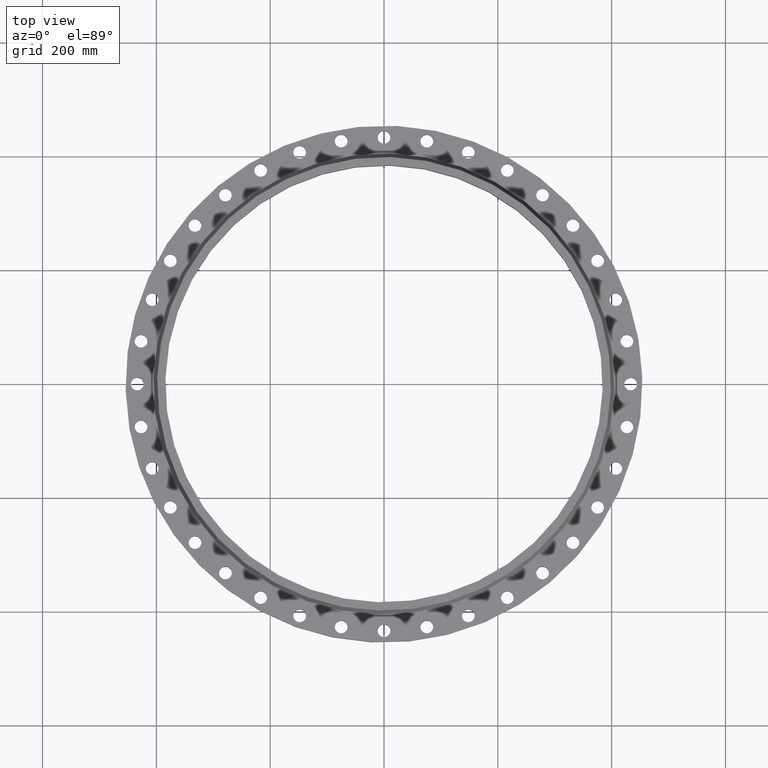
[diagram: clean part render]
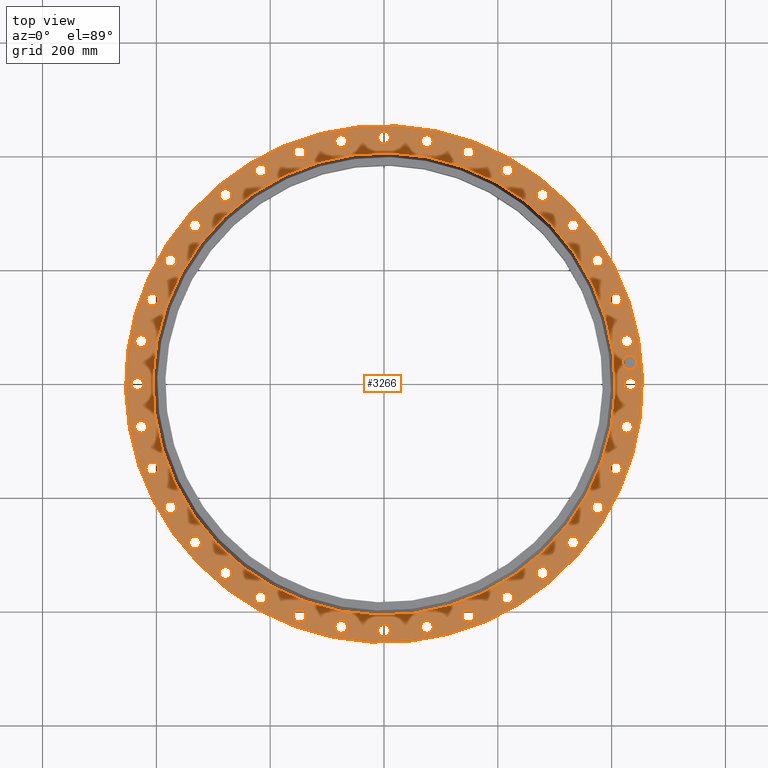
[diagram: same view with one face highlighted and labeled with its STEP entity id]
A machine part, top view. The second image highlights one B-rep face of the part: STEP entity #3266.
In plain terms, the highlighted planar face has unit normal (0, 0, -1).
Its self-contained STEP definition (entity closure, byte-faithful):
#65=AXIS2_PLACEMENT_3D('Circle Axis2P3D',#63,#64,$) ;
#89=AXIS2_PLACEMENT_3D('Circle Axis2P3D',#87,#88,$) ;
#123=AXIS2_PLACEMENT_3D('Circle Axis2P3D',#121,#122,$) ;
#147=AXIS2_PLACEMENT_3D('Circle Axis2P3D',#145,#146,$) ;
#164=AXIS2_PLACEMENT_3D('Circle Axis2P3D',#162,#163,$) ;
#199=AXIS2_PLACEMENT_3D('Circle Axis2P3D',#197,#198,$) ;
#1572=AXIS2_PLACEMENT_3D('Circle Axis2P3D',#1570,#1571,$) ;
#1584=AXIS2_PLACEMENT_3D('Circle Axis2P3D',#1582,#1583,$) ;
#1616=AXIS2_PLACEMENT_3D('Circle Axis2P3D',#1614,#1615,$) ;
#1628=AXIS2_PLACEMENT_3D('Circle Axis2P3D',#1626,#1627,$) ;
#1660=AXIS2_PLACEMENT_3D('Circle Axis2P3D',#1658,#1659,$) ;
#1672=AXIS2_PLACEMENT_3D('Circle Axis2P3D',#1670,#1671,$) ;
#1704=AXIS2_PLACEMENT_3D('Circle Axis2P3D',#1702,#1703,$) ;
#1716=AXIS2_PLACEMENT_3D('Circle Axis2P3D',#1714,#1715,$) ;
#1748=AXIS2_PLACEMENT_3D('Circle Axis2P3D',#1746,#1747,$) ;
#1760=AXIS2_PLACEMENT_3D('Circle Axis2P3D',#1758,#1759,$) ;
#1792=AXIS2_PLACEMENT_3D('Circle Axis2P3D',#1790,#1791,$) ;
#1804=AXIS2_PLACEMENT_3D('Circle Axis2P3D',#1802,#1803,$) ;
#1836=AXIS2_PLACEMENT_3D('Circle Axis2P3D',#1834,#1835,$) ;
#1848=AXIS2_PLACEMENT_3D('Circle Axis2P3D',#1846,#1847,$) ;
#1880=AXIS2_PLACEMENT_3D('Circle Axis2P3D',#1878,#1879,$) ;
#1892=AXIS2_PLACEMENT_3D('Circle Axis2P3D',#1890,#1891,$) ;
#1924=AXIS2_PLACEMENT_3D('Circle Axis2P3D',#1922,#1923,$) ;
#1936=AXIS2_PLACEMENT_3D('Circle Axis2P3D',#1934,#1935,$) ;
#1968=AXIS2_PLACEMENT_3D('Circle Axis2P3D',#1966,#1967,$) ;
#1980=AXIS2_PLACEMENT_3D('Circle Axis2P3D',#1978,#1979,$) ;
#2012=AXIS2_PLACEMENT_3D('Circle Axis2P3D',#2010,#2011,$) ;
#2024=AXIS2_PLACEMENT_3D('Circle Axis2P3D',#2022,#2023,$) ;
#2056=AXIS2_PLACEMENT_3D('Circle Axis2P3D',#2054,#2055,$) ;
#2068=AXIS2_PLACEMENT_3D('Circle Axis2P3D',#2066,#2067,$) ;
#2100=AXIS2_PLACEMENT_3D('Circle Axis2P3D',#2098,#2099,$) ;
#2112=AXIS2_PLACEMENT_3D('Circle Axis2P3D',#2110,#2111,$) ;
#2144=AXIS2_PLACEMENT_3D('Circle Axis2P3D',#2142,#2143,$) ;
#2156=AXIS2_PLACEMENT_3D('Circle Axis2P3D',#2154,#2155,$) ;
#2188=AXIS2_PLACEMENT_3D('Circle Axis2P3D',#2186,#2187,$) ;
#2200=AXIS2_PLACEMENT_3D('Circle Axis2P3D',#2198,#2199,$) ;
#2232=AXIS2_PLACEMENT_3D('Circle Axis2P3D',#2230,#2231,$) ;
#2244=AXIS2_PLACEMENT_3D('Circle Axis2P3D',#2242,#2243,$) ;
#2276=AXIS2_PLACEMENT_3D('Circle Axis2P3D',#2274,#2275,$) ;
#2288=AXIS2_PLACEMENT_3D('Circle Axis2P3D',#2286,#2287,$) ;
#2320=AXIS2_PLACEMENT_3D('Circle Axis2P3D',#2318,#2319,$) ;
#2332=AXIS2_PLACEMENT_3D('Circle Axis2P3D',#2330,#2331,$) ;
#2364=AXIS2_PLACEMENT_3D('Circle Axis2P3D',#2362,#2363,$) ;
#2376=AXIS2_PLACEMENT_3D('Circle Axis2P3D',#2374,#2375,$) ;
#2408=AXIS2_PLACEMENT_3D('Circle Axis2P3D',#2406,#2407,$) ;
#2420=AXIS2_PLACEMENT_3D('Circle Axis2P3D',#2418,#2419,$) ;
#2452=AXIS2_PLACEMENT_3D('Circle Axis2P3D',#2450,#2451,$) ;
#2464=AXIS2_PLACEMENT_3D('Circle Axis2P3D',#2462,#2463,$) ;
#2496=AXIS2_PLACEMENT_3D('Circle Axis2P3D',#2494,#2495,$) ;
#2508=AXIS2_PLACEMENT_3D('Circle Axis2P3D',#2506,#2507,$) ;
#2540=AXIS2_PLACEMENT_3D('Circle Axis2P3D',#2538,#2539,$) ;
#2552=AXIS2_PLACEMENT_3D('Circle Axis2P3D',#2550,#2551,$) ;
#2584=AXIS2_PLACEMENT_3D('Circle Axis2P3D',#2582,#2583,$) ;
#2596=AXIS2_PLACEMENT_3D('Circle Axis2P3D',#2594,#2595,$) ;
#2628=AXIS2_PLACEMENT_3D('Circle Axis2P3D',#2626,#2627,$) ;
#2640=AXIS2_PLACEMENT_3D('Circle Axis2P3D',#2638,#2639,$) ;
#2672=AXIS2_PLACEMENT_3D('Circle Axis2P3D',#2670,#2671,$) ;
#2684=AXIS2_PLACEMENT_3D('Circle Axis2P3D',#2682,#2683,$) ;
#2716=AXIS2_PLACEMENT_3D('Circle Axis2P3D',#2714,#2715,$) ;
#2728=AXIS2_PLACEMENT_3D('Circle Axis2P3D',#2726,#2727,$) ;
#2760=AXIS2_PLACEMENT_3D('Circle Axis2P3D',#2758,#2759,$) ;
#2772=AXIS2_PLACEMENT_3D('Circle Axis2P3D',#2770,#2771,$) ;
#2804=AXIS2_PLACEMENT_3D('Circle Axis2P3D',#2802,#2803,$) ;
#2816=AXIS2_PLACEMENT_3D('Circle Axis2P3D',#2814,#2815,$) ;
#2848=AXIS2_PLACEMENT_3D('Circle Axis2P3D',#2846,#2847,$) ;
#2860=AXIS2_PLACEMENT_3D('Circle Axis2P3D',#2858,#2859,$) ;
#2892=AXIS2_PLACEMENT_3D('Circle Axis2P3D',#2890,#2891,$) ;
#2904=AXIS2_PLACEMENT_3D('Circle Axis2P3D',#2902,#2903,$) ;
#2936=AXIS2_PLACEMENT_3D('Circle Axis2P3D',#2934,#2935,$) ;
#2948=AXIS2_PLACEMENT_3D('Circle Axis2P3D',#2946,#2947,$) ;
#2980=AXIS2_PLACEMENT_3D('Circle Axis2P3D',#2978,#2979,$) ;
#2992=AXIS2_PLACEMENT_3D('Circle Axis2P3D',#2990,#2991,$) ;
#3024=AXIS2_PLACEMENT_3D('Circle Axis2P3D',#3022,#3023,$) ;
#3036=AXIS2_PLACEMENT_3D('Circle Axis2P3D',#3034,#3035,$) ;
#3068=AXIS2_PLACEMENT_3D('Circle Axis2P3D',#3066,#3067,$) ;
#3080=AXIS2_PLACEMENT_3D('Circle Axis2P3D',#3078,#3079,$) ;
#3094=AXIS2_PLACEMENT_3D('Plane Axis2P3D',#3091,#3092,#3093) ;
#3250=AXIS2_PLACEMENT_3D('Circle Axis2P3D',#3248,#3249,$) ;
#3259=AXIS2_PLACEMENT_3D('Circle Axis2P3D',#3257,#3258,$) ;
#46=CARTESIAN_POINT('Vertex',(16.6788636728,0.210947236987,1.38000000001)) ;
#60=CARTESIAN_POINT('Vertex',(17.4511363273,-0.210947236987,1.38000000001)) ;
#63=CARTESIAN_POINT('Axis2P3D Location',(17.0650000001,0.,1.38000000001)) ;
#87=CARTESIAN_POINT('Axis2P3D Location',(17.0650000001,0.,1.38000000001)) ;
#118=CARTESIAN_POINT('Vertex',(-8.56973150258,-15.6867882939,1.38000000001)) ;
#121=CARTESIAN_POINT('Axis2P3D Location',(0.,0.,1.38000000001)) ;
#125=CARTESIAN_POINT('Vertex',(8.56973150258,15.6867882939,1.38000000001)) ;
#145=CARTESIAN_POINT('Axis2P3D Location',(0.,0.,1.38000000001)) ;
#162=CARTESIAN_POINT('Axis2P3D Location',(0.,0.,1.38000000001)) ;
#166=CARTESIAN_POINT('Vertex',(7.66618023294,14.0328487888,1.38000000001)) ;
#168=CARTESIAN_POINT('Vertex',(-7.66618023294,-14.0328487888,1.38000000001)) ;
#197=CARTESIAN_POINT('Axis2P3D Location',(0.,0.,1.38000000001)) ;
#1560=CARTESIAN_POINT('Vertex',(-16.6788636728,-0.210947236987,1.38000000001)) ;
#1567=CARTESIAN_POINT('Vertex',(-17.4511363273,0.210947236987,1.38000000001)) ;
#1570=CARTESIAN_POINT('Axis2P3D Location',(-17.0650000001,-2.08985976275E-015,1.38000000001)) ;
#1582=CARTESIAN_POINT('Axis2P3D Location',(-17.0650000001,-2.08985976275E-015,1.38000000001)) ;
#1604=CARTESIAN_POINT('Vertex',(16.3888436532,3.1039967568,1.38000000001)) ;
#1611=CARTESIAN_POINT('Vertex',(17.2226449573,2.82261554699,1.38000000001)) ;
#1614=CARTESIAN_POINT('Axis2P3D Location',(16.8057443052,2.9633061519,1.38000000001)) ;
#1626=CARTESIAN_POINT('Axis2P3D Location',(16.8057443052,2.9633061519,1.38000000001)) ;
#1648=CARTESIAN_POINT('Vertex',(-16.3888436532,-3.1039967568,1.38000000001)) ;
#1655=CARTESIAN_POINT('Vertex',(-17.2226449573,-2.82261554699,1.38000000001)) ;
#1658=CARTESIAN_POINT('Axis2P3D Location',(-16.8057443052,-2.9633061519,1.38000000001)) ;
#1670=CARTESIAN_POINT('Axis2P3D Location',(-16.8057443052,-2.9633061519,1.38000000001)) ;
#1692=CARTESIAN_POINT('Vertex',(16.4621048597,-2.68851180788,1.38000000001)) ;
#1699=CARTESIAN_POINT('Vertex',(17.1493837507,-3.23810049591,1.38000000001)) ;
#1702=CARTESIAN_POINT('Axis2P3D Location',(16.8057443052,-2.9633061519,1.38000000001)) ;
#1714=CARTESIAN_POINT('Axis2P3D Location',(16.8057443052,-2.9633061519,1.38000000001)) ;
#1736=CARTESIAN_POINT('Vertex',(-8.52211750251,14.3388460284,1.38000000001)) ;
#1743=CARTESIAN_POINT('Vertex',(-8.54288249756,15.2186010028,1.38000000001)) ;
#1746=CARTESIAN_POINT('Axis2P3D Location',(-8.53250000003,14.7787235156,1.38000000001)) ;
#1758=CARTESIAN_POINT('Axis2P3D Location',(-8.53250000003,14.7787235156,1.38000000001)) ;
#1780=CARTESIAN_POINT('Vertex',(12.6411565639,10.8825618712,1.38000000001)) ;
#1787=CARTESIAN_POINT('Vertex',(13.5039402799,11.0557792475,1.38000000001)) ;
#1790=CARTESIAN_POINT('Axis2P3D Location',(13.0725484219,10.9691705593,1.38000000001)) ;
#1802=CARTESIAN_POINT('Axis2P3D Location',(13.0725484219,10.9691705593,1.38000000001)) ;
#1824=CARTESIAN_POINT('Vertex',(-15.7451533207,5.50628178192,1.38000000001)) ;
#1831=CARTESIAN_POINT('Vertex',(-16.3265558269,6.16686570983,1.38000000001)) ;
#1834=CARTESIAN_POINT('Axis2P3D Location',(-16.0358545738,5.83657374588,1.38000000001)) ;
#1846=CARTESIAN_POINT('Axis2P3D Location',(-16.0358545738,5.83657374588,1.38000000001)) ;
#1868=CARTESIAN_POINT('Vertex',(14.5497932654,-8.15674617033,1.38000000001)) ;
#1875=CARTESIAN_POINT('Vertex',(15.0076537659,-8.90825382974,1.38000000001)) ;
#1878=CARTESIAN_POINT('Axis2P3D Location',(14.7787235156,-8.53250000003,1.38000000001)) ;
#1890=CARTESIAN_POINT('Axis2P3D Location',(14.7787235156,-8.53250000003,1.38000000001)) ;
#1912=CARTESIAN_POINT('Vertex',(2.68851180788,16.4621048597,1.38000000001)) ;
#1919=CARTESIAN_POINT('Vertex',(3.23810049591,17.1493837507,1.38000000001)) ;
#1922=CARTESIAN_POINT('Axis2P3D Location',(2.9633061519,16.8057443052,1.38000000001)) ;
#1934=CARTESIAN_POINT('Axis2P3D Location',(2.9633061519,16.8057443052,1.38000000001)) ;
#1956=CARTESIAN_POINT('Vertex',(12.9123451043,-10.5593719539,1.38000000001)) ;
#1963=CARTESIAN_POINT('Vertex',(13.2327517394,-11.3789691648,1.38000000001)) ;
#1966=CARTESIAN_POINT('Axis2P3D Location',(13.0725484219,-10.9691705593,1.38000000001)) ;
#1978=CARTESIAN_POINT('Axis2P3D Location',(13.0725484219,-10.9691705593,1.38000000001)) ;
#2000=CARTESIAN_POINT('Vertex',(14.3388460284,8.52211750251,1.38000000001)) ;
#2007=CARTESIAN_POINT('Vertex',(15.2186010028,8.54288249756,1.38000000001)) ;
#2010=CARTESIAN_POINT('Axis2P3D Location',(14.7787235156,8.53250000003,1.38000000001)) ;
#2022=CARTESIAN_POINT('Axis2P3D Location',(14.7787235156,8.53250000003,1.38000000001)) ;
#2044=CARTESIAN_POINT('Vertex',(10.8825618712,-12.6411565639,1.38000000001)) ;
#2051=CARTESIAN_POINT('Vertex',(11.0557792475,-13.5039402799,1.38000000001)) ;
#2054=CARTESIAN_POINT('Axis2P3D Location',(10.9691705593,-13.0725484219,1.38000000001)) ;
#2066=CARTESIAN_POINT('Axis2P3D Location',(10.9691705593,-13.0725484219,1.38000000001)) ;
#2088=CARTESIAN_POINT('Vertex',(-12.9123451043,10.5593719539,1.38000000001)) ;
#2095=CARTESIAN_POINT('Vertex',(-13.2327517394,11.3789691648,1.38000000001)) ;
#2098=CARTESIAN_POINT('Axis2P3D Location',(-13.0725484219,10.9691705593,1.38000000001)) ;
#2110=CARTESIAN_POINT('Axis2P3D Location',(-13.0725484219,10.9691705593,1.38000000001)) ;
#2132=CARTESIAN_POINT('Vertex',(8.52211750251,-14.3388460284,1.38000000001)) ;
#2139=CARTESIAN_POINT('Vertex',(8.54288249756,-15.2186010028,1.38000000001)) ;
#2142=CARTESIAN_POINT('Axis2P3D Location',(8.53250000003,-14.7787235156,1.38000000001)) ;
#2154=CARTESIAN_POINT('Axis2P3D Location',(8.53250000003,-14.7787235156,1.38000000001)) ;
#2176=CARTESIAN_POINT('Vertex',(-3.1039967568,16.3888436532,1.38000000001)) ;
#2183=CARTESIAN_POINT('Vertex',(-2.82261554699,17.2226449573,1.38000000001)) ;
#2186=CARTESIAN_POINT('Axis2P3D Location',(-2.9633061519,16.8057443052,1.38000000001)) ;
#2198=CARTESIAN_POINT('Axis2P3D Location',(-2.9633061519,16.8057443052,1.38000000001)) ;
#2220=CARTESIAN_POINT('Vertex',(5.90273290586,-15.6008569122,1.38000000001)) ;
#2227=CARTESIAN_POINT('Vertex',(5.77041458589,-16.4708522353,1.38000000001)) ;
#2230=CARTESIAN_POINT('Axis2P3D Location',(5.83657374588,-16.0358545738,1.38000000001)) ;
#2242=CARTESIAN_POINT('Axis2P3D Location',(5.83657374588,-16.0358545738,1.38000000001)) ;
#2264=CARTESIAN_POINT('Vertex',(8.15674617033,14.5497932654,1.38000000001)) ;
#2271=CARTESIAN_POINT('Vertex',(8.90825382974,15.0076537659,1.38000000001)) ;
#2274=CARTESIAN_POINT('Axis2P3D Location',(8.53250000003,14.7787235156,1.38000000001)) ;
#2286=CARTESIAN_POINT('Axis2P3D Location',(8.53250000003,14.7787235156,1.38000000001)) ;
#2308=CARTESIAN_POINT('Vertex',(3.1039967568,-16.3888436532,1.38000000001)) ;
#2315=CARTESIAN_POINT('Vertex',(2.82261554699,-17.2226449573,1.38000000001)) ;
#2318=CARTESIAN_POINT('Axis2P3D Location',(2.9633061519,-16.8057443052,1.38000000001)) ;
#2330=CARTESIAN_POINT('Axis2P3D Location',(2.9633061519,-16.8057443052,1.38000000001)) ;
#2352=CARTESIAN_POINT('Vertex',(15.6008569122,5.90273290586,1.38000000001)) ;
#2359=CARTESIAN_POINT('Vertex',(16.4708522353,5.77041458589,1.38000000001)) ;
#2362=CARTESIAN_POINT('Axis2P3D Location',(16.0358545738,5.83657374588,1.38000000001)) ;
#2374=CARTESIAN_POINT('Axis2P3D Location',(16.0358545738,5.83657374588,1.38000000001)) ;
#2396=CARTESIAN_POINT('Vertex',(0.210947236987,-16.6788636728,1.38000000001)) ;
#2403=CARTESIAN_POINT('Vertex',(-0.210947236987,-17.4511363273,1.38000000001)) ;
#2406=CARTESIAN_POINT('Axis2P3D Location',(1.04492988138E-015,-17.0650000001,1.38000000001)) ;
#2418=CARTESIAN_POINT('Axis2P3D Location',(1.04492988138E-015,-17.0650000001,1.38000000001)) ;
#2440=CARTESIAN_POINT('Vertex',(-16.4621048597,2.68851180788,1.38000000001)) ;
#2447=CARTESIAN_POINT('Vertex',(-17.1493837507,3.23810049591,1.38000000001)) ;
#2450=CARTESIAN_POINT('Axis2P3D Location',(-16.8057443052,2.9633061519,1.38000000001)) ;
#2462=CARTESIAN_POINT('Axis2P3D Location',(-16.8057443052,2.9633061519,1.38000000001)) ;
#2484=CARTESIAN_POINT('Vertex',(-2.68851180788,-16.4621048597,1.38000000001)) ;
#2491=CARTESIAN_POINT('Vertex',(-3.23810049591,-17.1493837507,1.38000000001)) ;
#2494=CARTESIAN_POINT('Axis2P3D Location',(-2.9633061519,-16.8057443052,1.38000000001)) ;
#2506=CARTESIAN_POINT('Axis2P3D Location',(-2.9633061519,-16.8057443052,1.38000000001)) ;
#2528=CARTESIAN_POINT('Vertex',(-14.5497932654,8.15674617033,1.38000000001)) ;
#2535=CARTESIAN_POINT('Vertex',(-15.0076537659,8.90825382974,1.38000000001)) ;
#2538=CARTESIAN_POINT('Axis2P3D Location',(-14.7787235156,8.53250000003,1.38000000001)) ;
#2550=CARTESIAN_POINT('Axis2P3D Location',(-14.7787235156,8.53250000003,1.38000000001)) ;
#2572=CARTESIAN_POINT('Vertex',(-5.50628178192,-15.7451533207,1.38000000001)) ;
#2579=CARTESIAN_POINT('Vertex',(-6.16686570983,-16.3265558269,1.38000000001)) ;
#2582=CARTESIAN_POINT('Axis2P3D Location',(-5.83657374588,-16.0358545738,1.38000000001)) ;
#2594=CARTESIAN_POINT('Axis2P3D Location',(-5.83657374588,-16.0358545738,1.38000000001)) ;
#2616=CARTESIAN_POINT('Vertex',(-10.8825618712,12.6411565639,1.38000000001)) ;
#2623=CARTESIAN_POINT('Vertex',(-11.0557792475,13.5039402799,1.38000000001)) ;
#2626=CARTESIAN_POINT('Axis2P3D Location',(-10.9691705593,13.0725484219,1.38000000001)) ;
#2638=CARTESIAN_POINT('Axis2P3D Location',(-10.9691705593,13.0725484219,1.38000000001)) ;
#2660=CARTESIAN_POINT('Vertex',(-8.15674617033,-14.5497932654,1.38000000001)) ;
#2667=CARTESIAN_POINT('Vertex',(-8.90825382974,-15.0076537659,1.38000000001)) ;
#2670=CARTESIAN_POINT('Axis2P3D Location',(-8.53250000003,-14.7787235156,1.38000000001)) ;
#2682=CARTESIAN_POINT('Axis2P3D Location',(-8.53250000003,-14.7787235156,1.38000000001)) ;
#2704=CARTESIAN_POINT('Vertex',(-5.90273290586,15.6008569122,1.38000000001)) ;
#2711=CARTESIAN_POINT('Vertex',(-5.77041458589,16.4708522353,1.38000000001)) ;
#2714=CARTESIAN_POINT('Axis2P3D Location',(-5.83657374588,16.0358545738,1.38000000001)) ;
#2726=CARTESIAN_POINT('Axis2P3D Location',(-5.83657374588,16.0358545738,1.38000000001)) ;
#2748=CARTESIAN_POINT('Vertex',(-10.5593719539,-12.9123451043,1.38000000001)) ;
#2755=CARTESIAN_POINT('Vertex',(-11.3789691648,-13.2327517394,1.38000000001)) ;
#2758=CARTESIAN_POINT('Axis2P3D Location',(-10.9691705593,-13.0725484219,1.38000000001)) ;
#2770=CARTESIAN_POINT('Axis2P3D Location',(-10.9691705593,-13.0725484219,1.38000000001)) ;
#2792=CARTESIAN_POINT('Vertex',(-0.210947236987,16.6788636728,1.38000000001)) ;
#2799=CARTESIAN_POINT('Vertex',(0.210947236987,17.4511363273,1.38000000001)) ;
#2802=CARTESIAN_POINT('Axis2P3D Location',(-3.13478964413E-015,17.0650000001,1.38000000001)) ;
#2814=CARTESIAN_POINT('Axis2P3D Location',(-3.13478964413E-015,17.0650000001,1.38000000001)) ;
#2836=CARTESIAN_POINT('Vertex',(-12.6411565639,-10.8825618712,1.38000000001)) ;
#2843=CARTESIAN_POINT('Vertex',(-13.5039402799,-11.0557792475,1.38000000001)) ;
#2846=CARTESIAN_POINT('Axis2P3D Location',(-13.0725484219,-10.9691705593,1.38000000001)) ;
#2858=CARTESIAN_POINT('Axis2P3D Location',(-13.0725484219,-10.9691705593,1.38000000001)) ;
#2880=CARTESIAN_POINT('Vertex',(5.50628178192,15.7451533207,1.38000000001)) ;
#2887=CARTESIAN_POINT('Vertex',(6.16686570983,16.3265558269,1.38000000001)) ;
#2890=CARTESIAN_POINT('Axis2P3D Location',(5.83657374588,16.0358545738,1.38000000001)) ;
#2902=CARTESIAN_POINT('Axis2P3D Location',(5.83657374588,16.0358545738,1.38000000001)) ;
#2924=CARTESIAN_POINT('Vertex',(-14.3388460284,-8.52211750251,1.38000000001)) ;
#2931=CARTESIAN_POINT('Vertex',(-15.2186010028,-8.54288249756,1.38000000001)) ;
#2934=CARTESIAN_POINT('Axis2P3D Location',(-14.7787235156,-8.53250000003,1.38000000001)) ;
#2946=CARTESIAN_POINT('Axis2P3D Location',(-14.7787235156,-8.53250000003,1.38000000001)) ;
#2968=CARTESIAN_POINT('Vertex',(10.5593719539,12.9123451043,1.38000000001)) ;
#2975=CARTESIAN_POINT('Vertex',(11.3789691648,13.2327517394,1.38000000001)) ;
#2978=CARTESIAN_POINT('Axis2P3D Location',(10.9691705593,13.0725484219,1.38000000001)) ;
#2990=CARTESIAN_POINT('Axis2P3D Location',(10.9691705593,13.0725484219,1.38000000001)) ;
#3012=CARTESIAN_POINT('Vertex',(-15.6008569122,-5.90273290586,1.38000000001)) ;
#3019=CARTESIAN_POINT('Vertex',(-16.4708522353,-5.77041458589,1.38000000001)) ;
#3022=CARTESIAN_POINT('Axis2P3D Location',(-16.0358545738,-5.83657374588,1.38000000001)) ;
#3034=CARTESIAN_POINT('Axis2P3D Location',(-16.0358545738,-5.83657374588,1.38000000001)) ;
#3056=CARTESIAN_POINT('Vertex',(15.7451533207,-5.50628178192,1.38000000001)) ;
#3063=CARTESIAN_POINT('Vertex',(16.3265558269,-6.16686570983,1.38000000001)) ;
#3066=CARTESIAN_POINT('Axis2P3D Location',(16.0358545738,-5.83657374588,1.38000000001)) ;
#3078=CARTESIAN_POINT('Axis2P3D Location',(16.0358545738,-5.83657374588,1.38000000001)) ;
#3091=CARTESIAN_POINT('Axis2P3D Location',(0.,17.8750000001,1.38000000001)) ;
#3248=CARTESIAN_POINT('Axis2P3D Location',(17.000062523,1.48731274999,1.38000000001)) ;
#3252=CARTESIAN_POINT('Vertex',(16.9564846521,1.98541009406,1.38000000001)) ;
#3254=CARTESIAN_POINT('Vertex',(17.0436403939,0.989215405928,1.38000000001)) ;
#3257=CARTESIAN_POINT('Axis2P3D Location',(17.000062523,1.48731274999,1.38000000001)) ;
#64=DIRECTION('Axis2P3D Direction',(0.,-0.,-0.0393700787402)) ;
#88=DIRECTION('Axis2P3D Direction',(0.,-0.,-0.0393700787402)) ;
#122=DIRECTION('Axis2P3D Direction',(0.,0.,-0.0393700787402)) ;
#146=DIRECTION('Axis2P3D Direction',(0.,0.,-0.0393700787402)) ;
#163=DIRECTION('Axis2P3D Direction',(0.,0.,-0.0393700787402)) ;
#198=DIRECTION('Axis2P3D Direction',(0.,0.,-0.0393700787402)) ;
#1571=DIRECTION('Axis2P3D Direction',(-0.,0.,-0.0393700787402)) ;
#1583=DIRECTION('Axis2P3D Direction',(-0.,0.,-0.0393700787402)) ;
#1615=DIRECTION('Axis2P3D Direction',(0.,0.,-0.0393700787402)) ;
#1627=DIRECTION('Axis2P3D Direction',(0.,0.,-0.0393700787402)) ;
#1659=DIRECTION('Axis2P3D Direction',(-0.,0.,-0.0393700787402)) ;
#1671=DIRECTION('Axis2P3D Direction',(-0.,0.,-0.0393700787402)) ;
#1703=DIRECTION('Axis2P3D Direction',(0.,-0.,-0.0393700787402)) ;
#1715=DIRECTION('Axis2P3D Direction',(0.,-0.,-0.0393700787402)) ;
#1747=DIRECTION('Axis2P3D Direction',(0.,0.,-0.0393700787402)) ;
#1759=DIRECTION('Axis2P3D Direction',(0.,0.,-0.0393700787402)) ;
#1791=DIRECTION('Axis2P3D Direction',(0.,0.,-0.0393700787402)) ;
#1803=DIRECTION('Axis2P3D Direction',(0.,0.,-0.0393700787402)) ;
#1835=DIRECTION('Axis2P3D Direction',(0.,0.,-0.0393700787402)) ;
#1847=DIRECTION('Axis2P3D Direction',(0.,0.,-0.0393700787402)) ;
#1879=DIRECTION('Axis2P3D Direction',(0.,-0.,-0.0393700787402)) ;
#1891=DIRECTION('Axis2P3D Direction',(0.,-0.,-0.0393700787402)) ;
#1923=DIRECTION('Axis2P3D Direction',(0.,0.,-0.0393700787402)) ;
#1935=DIRECTION('Axis2P3D Direction',(0.,0.,-0.0393700787402)) ;
#1967=DIRECTION('Axis2P3D Direction',(0.,-0.,-0.0393700787402)) ;
#1979=DIRECTION('Axis2P3D Direction',(0.,-0.,-0.0393700787402)) ;
#2011=DIRECTION('Axis2P3D Direction',(0.,0.,-0.0393700787402)) ;
#2023=DIRECTION('Axis2P3D Direction',(0.,0.,-0.0393700787402)) ;
#2055=DIRECTION('Axis2P3D Direction',(0.,-0.,-0.0393700787402)) ;
#2067=DIRECTION('Axis2P3D Direction',(0.,-0.,-0.0393700787402)) ;
#2099=DIRECTION('Axis2P3D Direction',(0.,0.,-0.0393700787402)) ;
#2111=DIRECTION('Axis2P3D Direction',(0.,0.,-0.0393700787402)) ;
#2143=DIRECTION('Axis2P3D Direction',(0.,-0.,-0.0393700787402)) ;
#2155=DIRECTION('Axis2P3D Direction',(0.,-0.,-0.0393700787402)) ;
#2187=DIRECTION('Axis2P3D Direction',(0.,0.,-0.0393700787402)) ;
#2199=DIRECTION('Axis2P3D Direction',(0.,0.,-0.0393700787402)) ;
#2231=DIRECTION('Axis2P3D Direction',(0.,-0.,-0.0393700787402)) ;
#2243=DIRECTION('Axis2P3D Direction',(0.,-0.,-0.0393700787402)) ;
#2275=DIRECTION('Axis2P3D Direction',(0.,0.,-0.0393700787402)) ;
#2287=DIRECTION('Axis2P3D Direction',(0.,0.,-0.0393700787402)) ;
#2319=DIRECTION('Axis2P3D Direction',(0.,-0.,-0.0393700787402)) ;
#2331=DIRECTION('Axis2P3D Direction',(0.,-0.,-0.0393700787402)) ;
#2363=DIRECTION('Axis2P3D Direction',(0.,0.,-0.0393700787402)) ;
#2375=DIRECTION('Axis2P3D Direction',(0.,0.,-0.0393700787402)) ;
#2407=DIRECTION('Axis2P3D Direction',(0.,-0.,-0.0393700787402)) ;
#2419=DIRECTION('Axis2P3D Direction',(0.,-0.,-0.0393700787402)) ;
#2451=DIRECTION('Axis2P3D Direction',(0.,0.,-0.0393700787402)) ;
#2463=DIRECTION('Axis2P3D Direction',(0.,0.,-0.0393700787402)) ;
#2495=DIRECTION('Axis2P3D Direction',(-0.,0.,-0.0393700787402)) ;
#2507=DIRECTION('Axis2P3D Direction',(-0.,0.,-0.0393700787402)) ;
#2539=DIRECTION('Axis2P3D Direction',(0.,0.,-0.0393700787402)) ;
#2551=DIRECTION('Axis2P3D Direction',(0.,0.,-0.0393700787402)) ;
#2583=DIRECTION('Axis2P3D Direction',(-0.,0.,-0.0393700787402)) ;
#2595=DIRECTION('Axis2P3D Direction',(-0.,0.,-0.0393700787402)) ;
#2627=DIRECTION('Axis2P3D Direction',(0.,0.,-0.0393700787402)) ;
#2639=DIRECTION('Axis2P3D Direction',(0.,0.,-0.0393700787402)) ;
#2671=DIRECTION('Axis2P3D Direction',(-0.,0.,-0.0393700787402)) ;
#2683=DIRECTION('Axis2P3D Direction',(-0.,0.,-0.0393700787402)) ;
#2715=DIRECTION('Axis2P3D Direction',(0.,0.,-0.0393700787402)) ;
#2727=DIRECTION('Axis2P3D Direction',(0.,0.,-0.0393700787402)) ;
#2759=DIRECTION('Axis2P3D Direction',(-0.,0.,-0.0393700787402)) ;
#2771=DIRECTION('Axis2P3D Direction',(-0.,0.,-0.0393700787402)) ;
#2803=DIRECTION('Axis2P3D Direction',(0.,0.,-0.0393700787402)) ;
#2815=DIRECTION('Axis2P3D Direction',(0.,0.,-0.0393700787402)) ;
#2847=DIRECTION('Axis2P3D Direction',(-0.,0.,-0.0393700787402)) ;
#2859=DIRECTION('Axis2P3D Direction',(-0.,0.,-0.0393700787402)) ;
#2891=DIRECTION('Axis2P3D Direction',(0.,0.,-0.0393700787402)) ;
#2903=DIRECTION('Axis2P3D Direction',(0.,0.,-0.0393700787402)) ;
#2935=DIRECTION('Axis2P3D Direction',(-0.,0.,-0.0393700787402)) ;
#2947=DIRECTION('Axis2P3D Direction',(-0.,0.,-0.0393700787402)) ;
#2979=DIRECTION('Axis2P3D Direction',(0.,0.,-0.0393700787402)) ;
#2991=DIRECTION('Axis2P3D Direction',(0.,0.,-0.0393700787402)) ;
#3023=DIRECTION('Axis2P3D Direction',(-0.,0.,-0.0393700787402)) ;
#3035=DIRECTION('Axis2P3D Direction',(-0.,0.,-0.0393700787402)) ;
#3067=DIRECTION('Axis2P3D Direction',(0.,-0.,-0.0393700787402)) ;
#3079=DIRECTION('Axis2P3D Direction',(0.,-0.,-0.0393700787402)) ;
#3092=DIRECTION('Axis2P3D Direction',(0.,0.,-0.0393700787402)) ;
#3093=DIRECTION('Axis2P3D XDirection',(0.0393700787402,0.,0.)) ;
#3249=DIRECTION('Axis2P3D Direction',(0.,0.,-0.0393700787402)) ;
#3258=DIRECTION('Axis2P3D Direction',(0.,0.,-0.0393700787402)) ;
#3097=ORIENTED_EDGE('',*,*,#149,.F.) ;
#3098=ORIENTED_EDGE('',*,*,#127,.F.) ;
#3101=ORIENTED_EDGE('',*,*,#67,.T.) ;
#3102=ORIENTED_EDGE('',*,*,#91,.T.) ;
#3105=ORIENTED_EDGE('',*,*,#201,.T.) ;
#3106=ORIENTED_EDGE('',*,*,#170,.T.) ;
#3109=ORIENTED_EDGE('',*,*,#1718,.T.) ;
#3110=ORIENTED_EDGE('',*,*,#1706,.T.) ;
#3113=ORIENTED_EDGE('',*,*,#3082,.T.) ;
#3114=ORIENTED_EDGE('',*,*,#3070,.T.) ;
#3117=ORIENTED_EDGE('',*,*,#1894,.T.) ;
#3118=ORIENTED_EDGE('',*,*,#1882,.T.) ;
#3121=ORIENTED_EDGE('',*,*,#1982,.T.) ;
#3122=ORIENTED_EDGE('',*,*,#1970,.T.) ;
#3125=ORIENTED_EDGE('',*,*,#2070,.T.) ;
#3126=ORIENTED_EDGE('',*,*,#2058,.T.) ;
#3129=ORIENTED_EDGE('',*,*,#2158,.T.) ;
#3130=ORIENTED_EDGE('',*,*,#2146,.T.) ;
#3133=ORIENTED_EDGE('',*,*,#2246,.T.) ;
#3134=ORIENTED_EDGE('',*,*,#2234,.T.) ;
#3137=ORIENTED_EDGE('',*,*,#2334,.T.) ;
#3138=ORIENTED_EDGE('',*,*,#2322,.T.) ;
#3141=ORIENTED_EDGE('',*,*,#2422,.T.) ;
#3142=ORIENTED_EDGE('',*,*,#2410,.T.) ;
#3145=ORIENTED_EDGE('',*,*,#2510,.T.) ;
#3146=ORIENTED_EDGE('',*,*,#2498,.T.) ;
#3149=ORIENTED_EDGE('',*,*,#2598,.T.) ;
#3150=ORIENTED_EDGE('',*,*,#2586,.T.) ;
#3153=ORIENTED_EDGE('',*,*,#2686,.T.) ;
#3154=ORIENTED_EDGE('',*,*,#2674,.T.) ;
#3157=ORIENTED_EDGE('',*,*,#2774,.T.) ;
#3158=ORIENTED_EDGE('',*,*,#2762,.T.) ;
#3161=ORIENTED_EDGE('',*,*,#2862,.T.) ;
#3162=ORIENTED_EDGE('',*,*,#2850,.T.) ;
#3165=ORIENTED_EDGE('',*,*,#2950,.T.) ;
#3166=ORIENTED_EDGE('',*,*,#2938,.T.) ;
#3169=ORIENTED_EDGE('',*,*,#3038,.T.) ;
#3170=ORIENTED_EDGE('',*,*,#3026,.T.) ;
#3173=ORIENTED_EDGE('',*,*,#1674,.T.) ;
#3174=ORIENTED_EDGE('',*,*,#1662,.T.) ;
#3177=ORIENTED_EDGE('',*,*,#1586,.T.) ;
#3178=ORIENTED_EDGE('',*,*,#1574,.T.) ;
#3181=ORIENTED_EDGE('',*,*,#2466,.T.) ;
#3182=ORIENTED_EDGE('',*,*,#2454,.T.) ;
#3185=ORIENTED_EDGE('',*,*,#1850,.T.) ;
#3186=ORIENTED_EDGE('',*,*,#1838,.T.) ;
#3189=ORIENTED_EDGE('',*,*,#2554,.T.) ;
#3190=ORIENTED_EDGE('',*,*,#2542,.T.) ;
#3193=ORIENTED_EDGE('',*,*,#2114,.T.) ;
#3194=ORIENTED_EDGE('',*,*,#2102,.T.) ;
#3197=ORIENTED_EDGE('',*,*,#2642,.T.) ;
#3198=ORIENTED_EDGE('',*,*,#2630,.T.) ;
#3201=ORIENTED_EDGE('',*,*,#1762,.T.) ;
#3202=ORIENTED_EDGE('',*,*,#1750,.T.) ;
#3205=ORIENTED_EDGE('',*,*,#2730,.T.) ;
#3206=ORIENTED_EDGE('',*,*,#2718,.T.) ;
#3209=ORIENTED_EDGE('',*,*,#2202,.T.) ;
#3210=ORIENTED_EDGE('',*,*,#2190,.T.) ;
#3213=ORIENTED_EDGE('',*,*,#2818,.T.) ;
#3214=ORIENTED_EDGE('',*,*,#2806,.T.) ;
#3217=ORIENTED_EDGE('',*,*,#1938,.T.) ;
#3218=ORIENTED_EDGE('',*,*,#1926,.T.) ;
#3221=ORIENTED_EDGE('',*,*,#2906,.T.) ;
#3222=ORIENTED_EDGE('',*,*,#2894,.T.) ;
#3225=ORIENTED_EDGE('',*,*,#2290,.T.) ;
#3226=ORIENTED_EDGE('',*,*,#2278,.T.) ;
#3229=ORIENTED_EDGE('',*,*,#2994,.T.) ;
#3230=ORIENTED_EDGE('',*,*,#2982,.T.) ;
#3233=ORIENTED_EDGE('',*,*,#1806,.T.) ;
#3234=ORIENTED_EDGE('',*,*,#1794,.T.) ;
#3237=ORIENTED_EDGE('',*,*,#2026,.T.) ;
#3238=ORIENTED_EDGE('',*,*,#2014,.T.) ;
#3241=ORIENTED_EDGE('',*,*,#2378,.T.) ;
#3242=ORIENTED_EDGE('',*,*,#2366,.T.) ;
#3245=ORIENTED_EDGE('',*,*,#1630,.T.) ;
#3246=ORIENTED_EDGE('',*,*,#1618,.T.) ;
#3263=ORIENTED_EDGE('',*,*,#3256,.T.) ;
#3264=ORIENTED_EDGE('',*,*,#3261,.T.) ;
#3103=FACE_BOUND('',#3100,.T.) ;
#3107=FACE_BOUND('',#3104,.T.) ;
#3111=FACE_BOUND('',#3108,.T.) ;
#3115=FACE_BOUND('',#3112,.T.) ;
#3119=FACE_BOUND('',#3116,.T.) ;
#3123=FACE_BOUND('',#3120,.T.) ;
#3127=FACE_BOUND('',#3124,.T.) ;
#3131=FACE_BOUND('',#3128,.T.) ;
#3135=FACE_BOUND('',#3132,.T.) ;
#3139=FACE_BOUND('',#3136,.T.) ;
#3143=FACE_BOUND('',#3140,.T.) ;
#3147=FACE_BOUND('',#3144,.T.) ;
#3151=FACE_BOUND('',#3148,.T.) ;
#3155=FACE_BOUND('',#3152,.T.) ;
#3159=FACE_BOUND('',#3156,.T.) ;
#3163=FACE_BOUND('',#3160,.T.) ;
#3167=FACE_BOUND('',#3164,.T.) ;
#3171=FACE_BOUND('',#3168,.T.) ;
#3175=FACE_BOUND('',#3172,.T.) ;
#3179=FACE_BOUND('',#3176,.T.) ;
#3183=FACE_BOUND('',#3180,.T.) ;
#3187=FACE_BOUND('',#3184,.T.) ;
#3191=FACE_BOUND('',#3188,.T.) ;
#3195=FACE_BOUND('',#3192,.T.) ;
#3199=FACE_BOUND('',#3196,.T.) ;
#3203=FACE_BOUND('',#3200,.T.) ;
#3207=FACE_BOUND('',#3204,.T.) ;
#3211=FACE_BOUND('',#3208,.T.) ;
#3215=FACE_BOUND('',#3212,.T.) ;
#3219=FACE_BOUND('',#3216,.T.) ;
#3223=FACE_BOUND('',#3220,.T.) ;
#3227=FACE_BOUND('',#3224,.T.) ;
#3231=FACE_BOUND('',#3228,.T.) ;
#3235=FACE_BOUND('',#3232,.T.) ;
#3239=FACE_BOUND('',#3236,.T.) ;
#3243=FACE_BOUND('',#3240,.T.) ;
#3247=FACE_BOUND('',#3244,.T.) ;
#3265=FACE_BOUND('',#3262,.T.) ;
#3266=ADVANCED_FACE('PartBody',(#3099,#3103,#3107,#3111,#3115,#3119,#3123,#3127,#3131,#3135,#3139,#3143,#3147,#3151,#3155,#3159,#3163,#3167,#3171,#3175,#3179,#3183,#3187,#3191,#3195,#3199,#3203,#3207,#3211,#3215,#3219,#3223,#3227,#3231,#3235,#3239,#3243,#3247,#3265),#3095,.F.) ;
#66=CIRCLE('generated circle',#65,0.440000000002) ;
#90=CIRCLE('generated circle',#89,0.440000000002) ;
#124=CIRCLE('generated circle',#123,17.8750000001) ;
#148=CIRCLE('generated circle',#147,17.8750000001) ;
#165=CIRCLE('generated circle',#164,15.9903459779) ;
#200=CIRCLE('generated circle',#199,15.9903459779) ;
#1573=CIRCLE('generated circle',#1572,0.440000000002) ;
#1585=CIRCLE('generated circle',#1584,0.440000000002) ;
#1617=CIRCLE('generated circle',#1616,0.440000000002) ;
#1629=CIRCLE('generated circle',#1628,0.440000000002) ;
#1661=CIRCLE('generated circle',#1660,0.440000000002) ;
#1673=CIRCLE('generated circle',#1672,0.440000000002) ;
#1705=CIRCLE('generated circle',#1704,0.440000000002) ;
#1717=CIRCLE('generated circle',#1716,0.440000000002) ;
#1749=CIRCLE('generated circle',#1748,0.440000000002) ;
#1761=CIRCLE('generated circle',#1760,0.440000000002) ;
#1793=CIRCLE('generated circle',#1792,0.440000000002) ;
#1805=CIRCLE('generated circle',#1804,0.440000000002) ;
#1837=CIRCLE('generated circle',#1836,0.440000000002) ;
#1849=CIRCLE('generated circle',#1848,0.440000000002) ;
#1881=CIRCLE('generated circle',#1880,0.440000000002) ;
#1893=CIRCLE('generated circle',#1892,0.440000000002) ;
#1925=CIRCLE('generated circle',#1924,0.440000000002) ;
#1937=CIRCLE('generated circle',#1936,0.440000000002) ;
#1969=CIRCLE('generated circle',#1968,0.440000000002) ;
#1981=CIRCLE('generated circle',#1980,0.440000000002) ;
#2013=CIRCLE('generated circle',#2012,0.440000000002) ;
#2025=CIRCLE('generated circle',#2024,0.440000000002) ;
#2057=CIRCLE('generated circle',#2056,0.440000000002) ;
#2069=CIRCLE('generated circle',#2068,0.440000000002) ;
#2101=CIRCLE('generated circle',#2100,0.440000000002) ;
#2113=CIRCLE('generated circle',#2112,0.440000000002) ;
#2145=CIRCLE('generated circle',#2144,0.440000000002) ;
#2157=CIRCLE('generated circle',#2156,0.440000000002) ;
#2189=CIRCLE('generated circle',#2188,0.440000000002) ;
#2201=CIRCLE('generated circle',#2200,0.440000000002) ;
#2233=CIRCLE('generated circle',#2232,0.440000000002) ;
#2245=CIRCLE('generated circle',#2244,0.440000000002) ;
#2277=CIRCLE('generated circle',#2276,0.440000000002) ;
#2289=CIRCLE('generated circle',#2288,0.440000000002) ;
#2321=CIRCLE('generated circle',#2320,0.440000000002) ;
#2333=CIRCLE('generated circle',#2332,0.440000000002) ;
#2365=CIRCLE('generated circle',#2364,0.440000000002) ;
#2377=CIRCLE('generated circle',#2376,0.440000000002) ;
#2409=CIRCLE('generated circle',#2408,0.440000000002) ;
#2421=CIRCLE('generated circle',#2420,0.440000000002) ;
#2453=CIRCLE('generated circle',#2452,0.440000000002) ;
#2465=CIRCLE('generated circle',#2464,0.440000000002) ;
#2497=CIRCLE('generated circle',#2496,0.440000000002) ;
#2509=CIRCLE('generated circle',#2508,0.440000000002) ;
#2541=CIRCLE('generated circle',#2540,0.440000000002) ;
#2553=CIRCLE('generated circle',#2552,0.440000000002) ;
#2585=CIRCLE('generated circle',#2584,0.440000000002) ;
#2597=CIRCLE('generated circle',#2596,0.440000000002) ;
#2629=CIRCLE('generated circle',#2628,0.440000000002) ;
#2641=CIRCLE('generated circle',#2640,0.440000000002) ;
#2673=CIRCLE('generated circle',#2672,0.440000000002) ;
#2685=CIRCLE('generated circle',#2684,0.440000000002) ;
#2717=CIRCLE('generated circle',#2716,0.440000000002) ;
#2729=CIRCLE('generated circle',#2728,0.440000000002) ;
#2761=CIRCLE('generated circle',#2760,0.440000000002) ;
#2773=CIRCLE('generated circle',#2772,0.440000000002) ;
#2805=CIRCLE('generated circle',#2804,0.440000000002) ;
#2817=CIRCLE('generated circle',#2816,0.440000000002) ;
#2849=CIRCLE('generated circle',#2848,0.440000000002) ;
#2861=CIRCLE('generated circle',#2860,0.440000000002) ;
#2893=CIRCLE('generated circle',#2892,0.440000000002) ;
#2905=CIRCLE('generated circle',#2904,0.440000000002) ;
#2937=CIRCLE('generated circle',#2936,0.440000000002) ;
#2949=CIRCLE('generated circle',#2948,0.440000000002) ;
#2981=CIRCLE('generated circle',#2980,0.440000000002) ;
#2993=CIRCLE('generated circle',#2992,0.440000000002) ;
#3025=CIRCLE('generated circle',#3024,0.440000000002) ;
#3037=CIRCLE('generated circle',#3036,0.440000000002) ;
#3069=CIRCLE('generated circle',#3068,0.440000000002) ;
#3081=CIRCLE('generated circle',#3080,0.440000000002) ;
#3251=CIRCLE('generated circle',#3250,0.499999995002) ;
#3260=CIRCLE('generated circle',#3259,0.499999995002) ;
#67=EDGE_CURVE('',#47,#61,#66,.T.) ;
#91=EDGE_CURVE('',#61,#47,#90,.T.) ;
#127=EDGE_CURVE('',#119,#126,#124,.T.) ;
#149=EDGE_CURVE('',#126,#119,#148,.T.) ;
#170=EDGE_CURVE('',#167,#169,#165,.T.) ;
#201=EDGE_CURVE('',#169,#167,#200,.T.) ;
#1574=EDGE_CURVE('',#1561,#1568,#1573,.T.) ;
#1586=EDGE_CURVE('',#1568,#1561,#1585,.T.) ;
#1618=EDGE_CURVE('',#1605,#1612,#1617,.T.) ;
#1630=EDGE_CURVE('',#1612,#1605,#1629,.T.) ;
#1662=EDGE_CURVE('',#1649,#1656,#1661,.T.) ;
#1674=EDGE_CURVE('',#1656,#1649,#1673,.T.) ;
#1706=EDGE_CURVE('',#1693,#1700,#1705,.T.) ;
#1718=EDGE_CURVE('',#1700,#1693,#1717,.T.) ;
#1750=EDGE_CURVE('',#1737,#1744,#1749,.T.) ;
#1762=EDGE_CURVE('',#1744,#1737,#1761,.T.) ;
#1794=EDGE_CURVE('',#1781,#1788,#1793,.T.) ;
#1806=EDGE_CURVE('',#1788,#1781,#1805,.T.) ;
#1838=EDGE_CURVE('',#1825,#1832,#1837,.T.) ;
#1850=EDGE_CURVE('',#1832,#1825,#1849,.T.) ;
#1882=EDGE_CURVE('',#1869,#1876,#1881,.T.) ;
#1894=EDGE_CURVE('',#1876,#1869,#1893,.T.) ;
#1926=EDGE_CURVE('',#1913,#1920,#1925,.T.) ;
#1938=EDGE_CURVE('',#1920,#1913,#1937,.T.) ;
#1970=EDGE_CURVE('',#1957,#1964,#1969,.T.) ;
#1982=EDGE_CURVE('',#1964,#1957,#1981,.T.) ;
#2014=EDGE_CURVE('',#2001,#2008,#2013,.T.) ;
#2026=EDGE_CURVE('',#2008,#2001,#2025,.T.) ;
#2058=EDGE_CURVE('',#2045,#2052,#2057,.T.) ;
#2070=EDGE_CURVE('',#2052,#2045,#2069,.T.) ;
#2102=EDGE_CURVE('',#2089,#2096,#2101,.T.) ;
#2114=EDGE_CURVE('',#2096,#2089,#2113,.T.) ;
#2146=EDGE_CURVE('',#2133,#2140,#2145,.T.) ;
#2158=EDGE_CURVE('',#2140,#2133,#2157,.T.) ;
#2190=EDGE_CURVE('',#2177,#2184,#2189,.T.) ;
#2202=EDGE_CURVE('',#2184,#2177,#2201,.T.) ;
#2234=EDGE_CURVE('',#2221,#2228,#2233,.T.) ;
#2246=EDGE_CURVE('',#2228,#2221,#2245,.T.) ;
#2278=EDGE_CURVE('',#2265,#2272,#2277,.T.) ;
#2290=EDGE_CURVE('',#2272,#2265,#2289,.T.) ;
#2322=EDGE_CURVE('',#2309,#2316,#2321,.T.) ;
#2334=EDGE_CURVE('',#2316,#2309,#2333,.T.) ;
#2366=EDGE_CURVE('',#2353,#2360,#2365,.T.) ;
#2378=EDGE_CURVE('',#2360,#2353,#2377,.T.) ;
#2410=EDGE_CURVE('',#2397,#2404,#2409,.T.) ;
#2422=EDGE_CURVE('',#2404,#2397,#2421,.T.) ;
#2454=EDGE_CURVE('',#2441,#2448,#2453,.T.) ;
#2466=EDGE_CURVE('',#2448,#2441,#2465,.T.) ;
#2498=EDGE_CURVE('',#2485,#2492,#2497,.T.) ;
#2510=EDGE_CURVE('',#2492,#2485,#2509,.T.) ;
#2542=EDGE_CURVE('',#2529,#2536,#2541,.T.) ;
#2554=EDGE_CURVE('',#2536,#2529,#2553,.T.) ;
#2586=EDGE_CURVE('',#2573,#2580,#2585,.T.) ;
#2598=EDGE_CURVE('',#2580,#2573,#2597,.T.) ;
#2630=EDGE_CURVE('',#2617,#2624,#2629,.T.) ;
#2642=EDGE_CURVE('',#2624,#2617,#2641,.T.) ;
#2674=EDGE_CURVE('',#2661,#2668,#2673,.T.) ;
#2686=EDGE_CURVE('',#2668,#2661,#2685,.T.) ;
#2718=EDGE_CURVE('',#2705,#2712,#2717,.T.) ;
#2730=EDGE_CURVE('',#2712,#2705,#2729,.T.) ;
#2762=EDGE_CURVE('',#2749,#2756,#2761,.T.) ;
#2774=EDGE_CURVE('',#2756,#2749,#2773,.T.) ;
#2806=EDGE_CURVE('',#2793,#2800,#2805,.T.) ;
#2818=EDGE_CURVE('',#2800,#2793,#2817,.T.) ;
#2850=EDGE_CURVE('',#2837,#2844,#2849,.T.) ;
#2862=EDGE_CURVE('',#2844,#2837,#2861,.T.) ;
#2894=EDGE_CURVE('',#2881,#2888,#2893,.T.) ;
#2906=EDGE_CURVE('',#2888,#2881,#2905,.T.) ;
#2938=EDGE_CURVE('',#2925,#2932,#2937,.T.) ;
#2950=EDGE_CURVE('',#2932,#2925,#2949,.T.) ;
#2982=EDGE_CURVE('',#2969,#2976,#2981,.T.) ;
#2994=EDGE_CURVE('',#2976,#2969,#2993,.T.) ;
#3026=EDGE_CURVE('',#3013,#3020,#3025,.T.) ;
#3038=EDGE_CURVE('',#3020,#3013,#3037,.T.) ;
#3070=EDGE_CURVE('',#3057,#3064,#3069,.T.) ;
#3082=EDGE_CURVE('',#3064,#3057,#3081,.T.) ;
#3256=EDGE_CURVE('',#3253,#3255,#3251,.T.) ;
#3261=EDGE_CURVE('',#3255,#3253,#3260,.T.) ;
#3096=EDGE_LOOP('',(#3097,#3098)) ;
#3100=EDGE_LOOP('',(#3101,#3102)) ;
#3104=EDGE_LOOP('',(#3105,#3106)) ;
#3108=EDGE_LOOP('',(#3109,#3110)) ;
#3112=EDGE_LOOP('',(#3113,#3114)) ;
#3116=EDGE_LOOP('',(#3117,#3118)) ;
#3120=EDGE_LOOP('',(#3121,#3122)) ;
#3124=EDGE_LOOP('',(#3125,#3126)) ;
#3128=EDGE_LOOP('',(#3129,#3130)) ;
#3132=EDGE_LOOP('',(#3133,#3134)) ;
#3136=EDGE_LOOP('',(#3137,#3138)) ;
#3140=EDGE_LOOP('',(#3141,#3142)) ;
#3144=EDGE_LOOP('',(#3145,#3146)) ;
#3148=EDGE_LOOP('',(#3149,#3150)) ;
#3152=EDGE_LOOP('',(#3153,#3154)) ;
#3156=EDGE_LOOP('',(#3157,#3158)) ;
#3160=EDGE_LOOP('',(#3161,#3162)) ;
#3164=EDGE_LOOP('',(#3165,#3166)) ;
#3168=EDGE_LOOP('',(#3169,#3170)) ;
#3172=EDGE_LOOP('',(#3173,#3174)) ;
#3176=EDGE_LOOP('',(#3177,#3178)) ;
#3180=EDGE_LOOP('',(#3181,#3182)) ;
#3184=EDGE_LOOP('',(#3185,#3186)) ;
#3188=EDGE_LOOP('',(#3189,#3190)) ;
#3192=EDGE_LOOP('',(#3193,#3194)) ;
#3196=EDGE_LOOP('',(#3197,#3198)) ;
#3200=EDGE_LOOP('',(#3201,#3202)) ;
#3204=EDGE_LOOP('',(#3205,#3206)) ;
#3208=EDGE_LOOP('',(#3209,#3210)) ;
#3212=EDGE_LOOP('',(#3213,#3214)) ;
#3216=EDGE_LOOP('',(#3217,#3218)) ;
#3220=EDGE_LOOP('',(#3221,#3222)) ;
#3224=EDGE_LOOP('',(#3225,#3226)) ;
#3228=EDGE_LOOP('',(#3229,#3230)) ;
#3232=EDGE_LOOP('',(#3233,#3234)) ;
#3236=EDGE_LOOP('',(#3237,#3238)) ;
#3240=EDGE_LOOP('',(#3241,#3242)) ;
#3244=EDGE_LOOP('',(#3245,#3246)) ;
#3262=EDGE_LOOP('',(#3263,#3264)) ;
#3099=FACE_OUTER_BOUND('',#3096,.T.) ;
#3095=PLANE('',#3094) ;
#47=VERTEX_POINT('',#46) ;
#61=VERTEX_POINT('',#60) ;
#119=VERTEX_POINT('',#118) ;
#126=VERTEX_POINT('',#125) ;
#167=VERTEX_POINT('',#166) ;
#169=VERTEX_POINT('',#168) ;
#1561=VERTEX_POINT('',#1560) ;
#1568=VERTEX_POINT('',#1567) ;
#1605=VERTEX_POINT('',#1604) ;
#1612=VERTEX_POINT('',#1611) ;
#1649=VERTEX_POINT('',#1648) ;
#1656=VERTEX_POINT('',#1655) ;
#1693=VERTEX_POINT('',#1692) ;
#1700=VERTEX_POINT('',#1699) ;
#1737=VERTEX_POINT('',#1736) ;
#1744=VERTEX_POINT('',#1743) ;
#1781=VERTEX_POINT('',#1780) ;
#1788=VERTEX_POINT('',#1787) ;
#1825=VERTEX_POINT('',#1824) ;
#1832=VERTEX_POINT('',#1831) ;
#1869=VERTEX_POINT('',#1868) ;
#1876=VERTEX_POINT('',#1875) ;
#1913=VERTEX_POINT('',#1912) ;
#1920=VERTEX_POINT('',#1919) ;
#1957=VERTEX_POINT('',#1956) ;
#1964=VERTEX_POINT('',#1963) ;
#2001=VERTEX_POINT('',#2000) ;
#2008=VERTEX_POINT('',#2007) ;
#2045=VERTEX_POINT('',#2044) ;
#2052=VERTEX_POINT('',#2051) ;
#2089=VERTEX_POINT('',#2088) ;
#2096=VERTEX_POINT('',#2095) ;
#2133=VERTEX_POINT('',#2132) ;
#2140=VERTEX_POINT('',#2139) ;
#2177=VERTEX_POINT('',#2176) ;
#2184=VERTEX_POINT('',#2183) ;
#2221=VERTEX_POINT('',#2220) ;
#2228=VERTEX_POINT('',#2227) ;
#2265=VERTEX_POINT('',#2264) ;
#2272=VERTEX_POINT('',#2271) ;
#2309=VERTEX_POINT('',#2308) ;
#2316=VERTEX_POINT('',#2315) ;
#2353=VERTEX_POINT('',#2352) ;
#2360=VERTEX_POINT('',#2359) ;
#2397=VERTEX_POINT('',#2396) ;
#2404=VERTEX_POINT('',#2403) ;
#2441=VERTEX_POINT('',#2440) ;
#2448=VERTEX_POINT('',#2447) ;
#2485=VERTEX_POINT('',#2484) ;
#2492=VERTEX_POINT('',#2491) ;
#2529=VERTEX_POINT('',#2528) ;
#2536=VERTEX_POINT('',#2535) ;
#2573=VERTEX_POINT('',#2572) ;
#2580=VERTEX_POINT('',#2579) ;
#2617=VERTEX_POINT('',#2616) ;
#2624=VERTEX_POINT('',#2623) ;
#2661=VERTEX_POINT('',#2660) ;
#2668=VERTEX_POINT('',#2667) ;
#2705=VERTEX_POINT('',#2704) ;
#2712=VERTEX_POINT('',#2711) ;
#2749=VERTEX_POINT('',#2748) ;
#2756=VERTEX_POINT('',#2755) ;
#2793=VERTEX_POINT('',#2792) ;
#2800=VERTEX_POINT('',#2799) ;
#2837=VERTEX_POINT('',#2836) ;
#2844=VERTEX_POINT('',#2843) ;
#2881=VERTEX_POINT('',#2880) ;
#2888=VERTEX_POINT('',#2887) ;
#2925=VERTEX_POINT('',#2924) ;
#2932=VERTEX_POINT('',#2931) ;
#2969=VERTEX_POINT('',#2968) ;
#2976=VERTEX_POINT('',#2975) ;
#3013=VERTEX_POINT('',#3012) ;
#3020=VERTEX_POINT('',#3019) ;
#3057=VERTEX_POINT('',#3056) ;
#3064=VERTEX_POINT('',#3063) ;
#3253=VERTEX_POINT('',#3252) ;
#3255=VERTEX_POINT('',#3254) ;